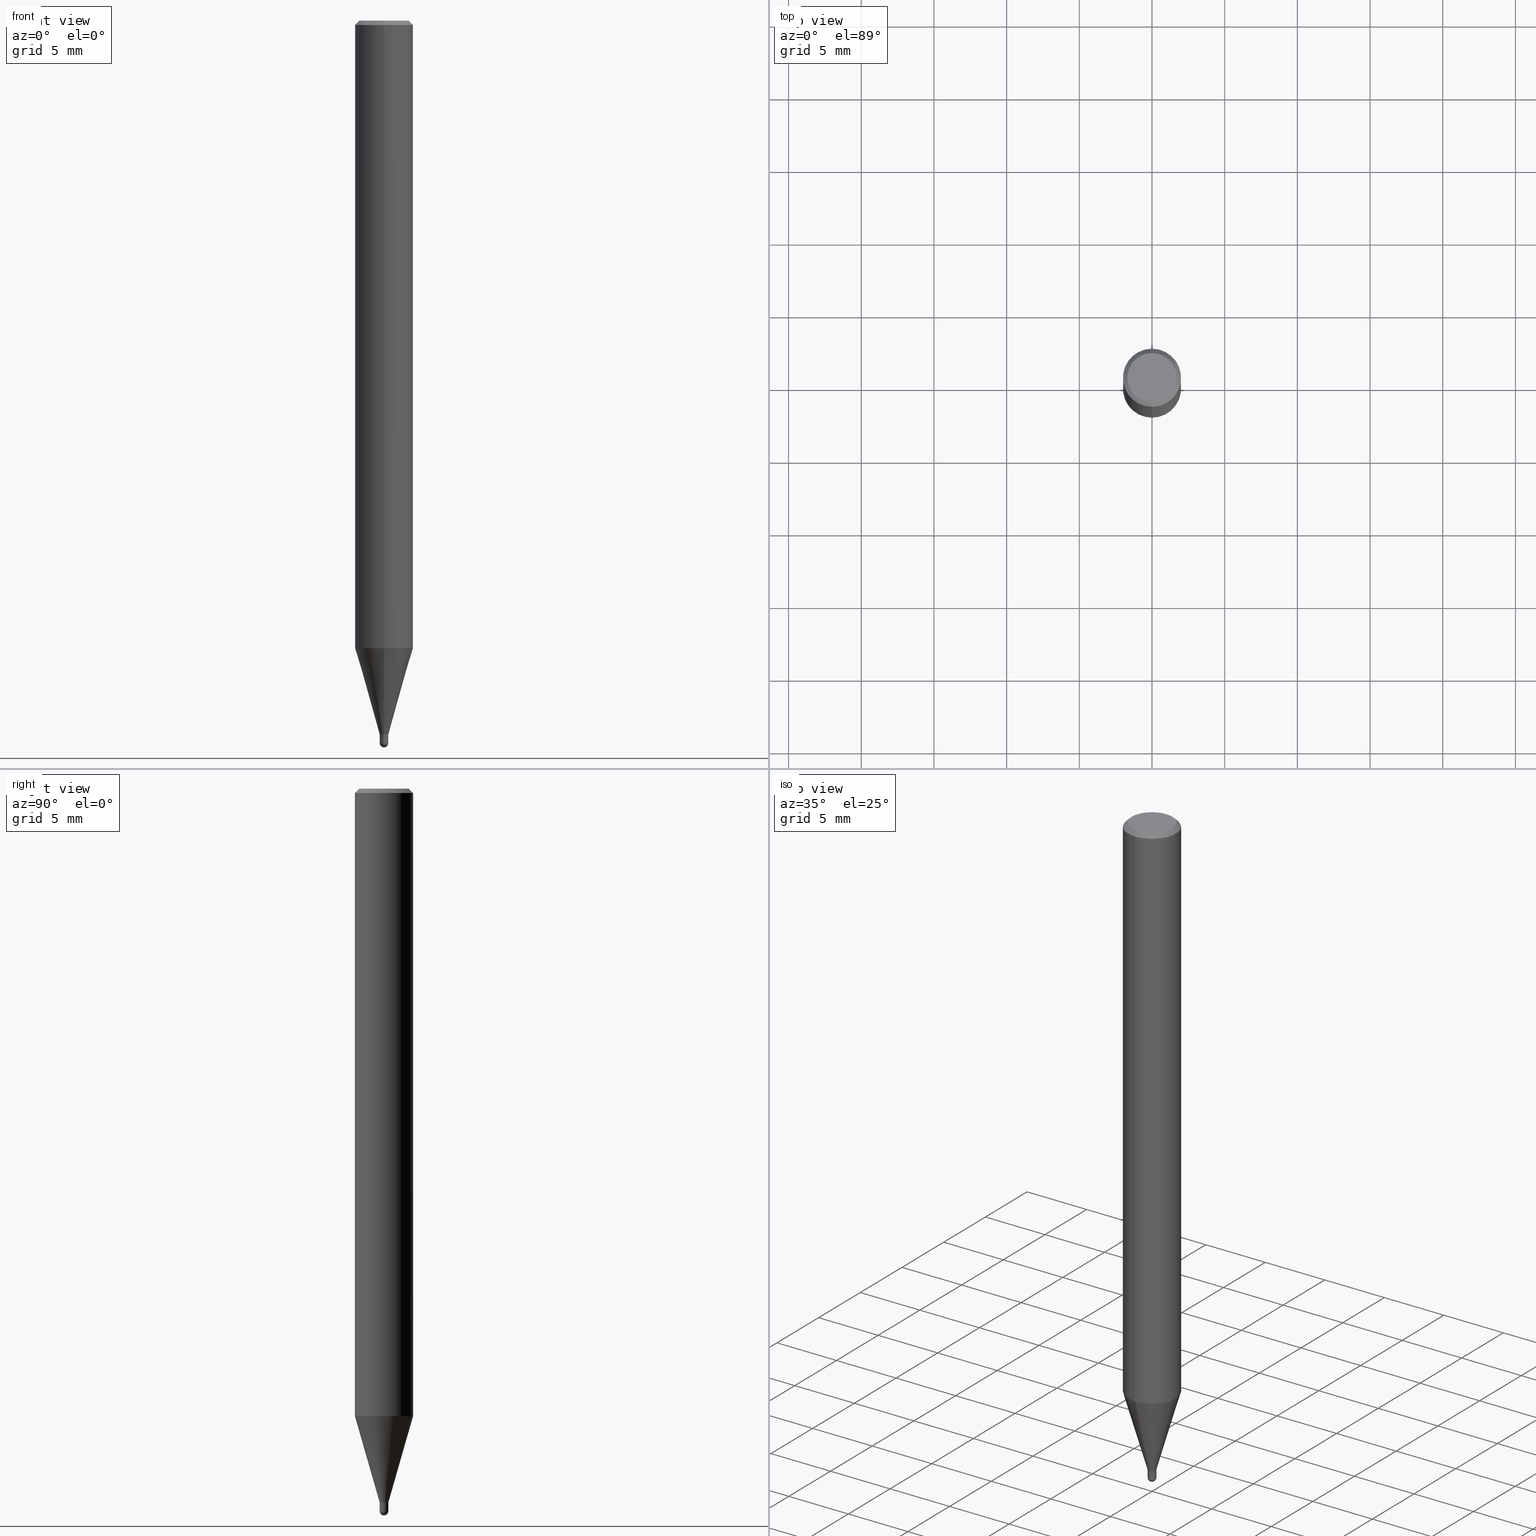
[diagram: canonical four-view strip — front | top / right | iso, engineering-drawing reading convention]
A machine part, canonical four-view strip (front | top / right | iso — engineering-drawing reading convention). The complete STEP part file that produces these views, byte-faithful:
ISO-10303-21;
HEADER;
FILE_DESCRIPTION(('no description'),'unknown implementation level');
FILE_NAME('CFB3006-0090-Huellk.stp','  ',('CIMSOURCE GmbH'),('CADClick - KiM GmbH - www.kimweb.de'),'unknown preprocess','ACIS','unknown authorization');
FILE_SCHEMA(('automotive_design'));
ENDSEC;
DATA;
#1=MECHANICAL_DESIGN_GEOMETRIC_PRESENTATION_REPRESENTATION(' ',(#14,#15,#16,#17,#18,#19,#20,#21,#22,#23,#24,#25,#26,#27,#28,#29,#30,#31,#32,#33,#34,#35,#36,#37,#38,#39,#40,#41,#42,#43,#44,#45,#46,#47,#48,#49,#50,#51,#52,#53,#54,#55,#56,#57,#58,#59,#60,#61,#62,#63,#64,#65,#66),#10);
#2=PRODUCT_DEFINITION_CONTEXT('',#67,'design');
#3=APPLICATION_PROTOCOL_DEFINITION('INTERNATIONAL STANDARD','automotive_design',1994,#67);
#4=PRODUCT_CATEGORY_RELATIONSHIP('NONE','NONE',#68,#69);
#5=SHAPE_DEFINITION_REPRESENTATION(#70,#71);
#6=PRODUCT_DEFINITION_CONTEXT('',#72,'design');
#7=APPLICATION_PROTOCOL_DEFINITION('INTERNATIONAL STANDARD','automotive_design',1994,#72);
#8=PRODUCT_CATEGORY_RELATIONSHIP('NONE','NONE',#73,#74);
#9=SHAPE_DEFINITION_REPRESENTATION(#75,#76);
#10= (GEOMETRIC_REPRESENTATION_CONTEXT(3)GLOBAL_UNCERTAINTY_ASSIGNED_CONTEXT((#79))GLOBAL_UNIT_ASSIGNED_CONTEXT((#81,#82,#83))REPRESENTATION_CONTEXT('NONE','WORKSPACE'));
#14=STYLED_ITEM('',(#85),#86);
#15=STYLED_ITEM('',(#87),#88);
#16=STYLED_ITEM('',(#89),#90);
#17=STYLED_ITEM('',(#91),#92);
#18=STYLED_ITEM('',(#93),#94);
#19=STYLED_ITEM('',(#95),#96);
#20=STYLED_ITEM('',(#97),#98);
#21=STYLED_ITEM('',(#99),#100);
#22=STYLED_ITEM('',(#101),#102);
#23=STYLED_ITEM('',(#103),#104);
#24=STYLED_ITEM('',(#105),#106);
#25=STYLED_ITEM('',(#107),#108);
#26=STYLED_ITEM('',(#109),#110);
#27=STYLED_ITEM('',(#111),#112);
#28=STYLED_ITEM('',(#113),#114);
#29=STYLED_ITEM('',(#115),#116);
#30=STYLED_ITEM('',(#117),#118);
#31=STYLED_ITEM('',(#119),#120);
#32=STYLED_ITEM('',(#121),#122);
#33=STYLED_ITEM('',(#123),#124);
#34=STYLED_ITEM('',(#125),#126);
#35=STYLED_ITEM('',(#127),#128);
#36=STYLED_ITEM('',(#129),#130);
#37=STYLED_ITEM('',(#131),#132);
#38=STYLED_ITEM('',(#133),#134);
#39=STYLED_ITEM('',(#135),#136);
#40=STYLED_ITEM('',(#137),#138);
#41=STYLED_ITEM('',(#139),#140);
#42=STYLED_ITEM('',(#141),#142);
#43=STYLED_ITEM('',(#143),#144);
#44=STYLED_ITEM('',(#145),#146);
#45=STYLED_ITEM('',(#147),#148);
#46=STYLED_ITEM('',(#149),#150);
#47=STYLED_ITEM('',(#151),#152);
#48=STYLED_ITEM('',(#153),#154);
#49=STYLED_ITEM('',(#155),#156);
#50=STYLED_ITEM('',(#157),#158);
#51=STYLED_ITEM('',(#159),#160);
#52=STYLED_ITEM('',(#161),#162);
#53=STYLED_ITEM('',(#163),#164);
#54=STYLED_ITEM('',(#165),#166);
#55=STYLED_ITEM('',(#167),#168);
#56=STYLED_ITEM('',(#169),#170);
#57=STYLED_ITEM('',(#171),#172);
#58=STYLED_ITEM('',(#173),#174);
#59=STYLED_ITEM('',(#175),#176);
#60=STYLED_ITEM('',(#177),#178);
#61=STYLED_ITEM('',(#179),#180);
#62=STYLED_ITEM('',(#181),#182);
#63=STYLED_ITEM('',(#183),#184);
#64=STYLED_ITEM('',(#185),#186);
#65=STYLED_ITEM('',(#187),#188);
#66=STYLED_ITEM('',(#189),#190);
#67=APPLICATION_CONTEXT(' ');
#68=PRODUCT_CATEGORY('part','NONE');
#69=PRODUCT_RELATED_PRODUCT_CATEGORY('detail',' ',(#191));
#70=PRODUCT_DEFINITION_SHAPE('NONE','NONE',#192);
#71=ADVANCED_BREP_SHAPE_REPRESENTATION('1',(#102,#193),#10);
#72=APPLICATION_CONTEXT(' ');
#73=PRODUCT_CATEGORY('part','NONE');
#74=PRODUCT_RELATED_PRODUCT_CATEGORY('detail',' ',(#194));
#75=PRODUCT_DEFINITION_SHAPE('NONE','NONE',#195);
#76=ADVANCED_BREP_SHAPE_REPRESENTATION('2',(#174,#196),#10);
#79=UNCERTAINTY_MEASURE_WITH_UNIT(LENGTH_MEASURE(1.0E-006),#81,'','');
#81= (CONVERSION_BASED_UNIT('MILLIMETRE',#199)LENGTH_UNIT()NAMED_UNIT(#202));
#82= (NAMED_UNIT(#204)PLANE_ANGLE_UNIT()SI_UNIT($,.RADIAN.));
#83= (NAMED_UNIT(#204)SOLID_ANGLE_UNIT()SI_UNIT($,.STERADIAN.));
#85=PRESENTATION_STYLE_ASSIGNMENT((#210));
#86=ADVANCED_FACE('',(#211,#212),#213,.T.);
#87=PRESENTATION_STYLE_ASSIGNMENT((#214));
#88=ADVANCED_FACE('',(#215),#216,.T.);
#89=PRESENTATION_STYLE_ASSIGNMENT((#217));
#90=EDGE_CURVE('',#124,#100,#218,.T.);
#91=PRESENTATION_STYLE_ASSIGNMENT((#219));
#92=EDGE_CURVE('',#130,#100,#220,.T.);
#93=PRESENTATION_STYLE_ASSIGNMENT((#221));
#94=ADVANCED_FACE('',(#222),#223,.T.);
#95=PRESENTATION_STYLE_ASSIGNMENT((#224));
#96=VERTEX_POINT('',#225);
#97=PRESENTATION_STYLE_ASSIGNMENT((#226));
#98=VERTEX_POINT('',#227);
#99=PRESENTATION_STYLE_ASSIGNMENT((#228));
#100=VERTEX_POINT('',#229);
#101=PRESENTATION_STYLE_ASSIGNMENT((#230));
#102=MANIFOLD_SOLID_BREP('1',#231);
#103=PRESENTATION_STYLE_ASSIGNMENT((#232));
#104=VERTEX_POINT('',#233);
#105=PRESENTATION_STYLE_ASSIGNMENT((#234));
#106=VERTEX_POINT('',#235);
#107=PRESENTATION_STYLE_ASSIGNMENT((#236));
#108=ADVANCED_FACE('',(#237),#238,.T.);
#109=PRESENTATION_STYLE_ASSIGNMENT((#239));
#110=EDGE_CURVE('',#96,#176,#240,.T.);
#111=PRESENTATION_STYLE_ASSIGNMENT((#241));
#112=EDGE_CURVE('',#124,#126,#242,.T.);
#113=PRESENTATION_STYLE_ASSIGNMENT((#243));
#114=EDGE_CURVE('',#130,#126,#244,.T.);
#115=PRESENTATION_STYLE_ASSIGNMENT((#245));
#116=EDGE_CURVE('',#146,#124,#246,.T.);
#117=PRESENTATION_STYLE_ASSIGNMENT((#247));
#118=VERTEX_POINT('',#248);
#119=PRESENTATION_STYLE_ASSIGNMENT((#249));
#120=VERTEX_POINT('',#250);
#121=PRESENTATION_STYLE_ASSIGNMENT((#251));
#122=EDGE_CURVE('',#106,#118,#252,.T.);
#123=PRESENTATION_STYLE_ASSIGNMENT((#253));
#124=VERTEX_POINT('',#254);
#125=PRESENTATION_STYLE_ASSIGNMENT((#255));
#126=VERTEX_POINT('',#256);
#127=PRESENTATION_STYLE_ASSIGNMENT((#257));
#128=EDGE_CURVE('',#100,#124,#258,.T.);
#129=PRESENTATION_STYLE_ASSIGNMENT((#259));
#130=VERTEX_POINT('',#260);
#131=PRESENTATION_STYLE_ASSIGNMENT((#261));
#132=EDGE_CURVE('',#118,#98,#262,.T.);
#133=PRESENTATION_STYLE_ASSIGNMENT((#263));
#134=ADVANCED_FACE('',(#264),#265,.T.);
#135=PRESENTATION_STYLE_ASSIGNMENT((#266));
#136=EDGE_CURVE('',#186,#188,#267,.T.);
#137=PRESENTATION_STYLE_ASSIGNMENT((#268));
#138=EDGE_CURVE('',#100,#120,#269,.T.);
#139=PRESENTATION_STYLE_ASSIGNMENT((#270));
#140=ADVANCED_FACE('',(#271),#272,.T.);
#141=PRESENTATION_STYLE_ASSIGNMENT((#273));
#142=ADVANCED_FACE('',(#274),#275,.T.);
#143=PRESENTATION_STYLE_ASSIGNMENT((#276));
#144=EDGE_CURVE('',#146,#120,#277,.T.);
#145=PRESENTATION_STYLE_ASSIGNMENT((#278));
#146=VERTEX_POINT('',#279);
#147=PRESENTATION_STYLE_ASSIGNMENT((#280));
#148=EDGE_CURVE('',#104,#106,#281,.T.);
#149=PRESENTATION_STYLE_ASSIGNMENT((#282));
#150=EDGE_CURVE('',#98,#118,#283,.T.);
#151=PRESENTATION_STYLE_ASSIGNMENT((#284));
#152=ADVANCED_FACE('',(#285),#286,.T.);
#153=PRESENTATION_STYLE_ASSIGNMENT((#287));
#154=EDGE_CURVE('',#176,#96,#288,.T.);
#155=PRESENTATION_STYLE_ASSIGNMENT((#289));
#156=ADVANCED_FACE('',(#290),#291,.T.);
#157=PRESENTATION_STYLE_ASSIGNMENT((#292));
#158=EDGE_CURVE('',#106,#104,#293,.T.);
#159=PRESENTATION_STYLE_ASSIGNMENT((#294));
#160=EDGE_CURVE('',#106,#104,#295,.T.);
#161=PRESENTATION_STYLE_ASSIGNMENT((#296));
#162=ADVANCED_FACE('',(#297),#298,.T.);
#163=PRESENTATION_STYLE_ASSIGNMENT((#299));
#164=ADVANCED_FACE('',(#300),#301,.T.);
#165=PRESENTATION_STYLE_ASSIGNMENT((#302));
#166=ADVANCED_FACE('',(#303),#304,.T.);
#167=PRESENTATION_STYLE_ASSIGNMENT((#305));
#168=EDGE_CURVE('',#176,#188,#306,.T.);
#169=PRESENTATION_STYLE_ASSIGNMENT((#307));
#170=EDGE_CURVE('',#98,#104,#308,.T.);
#171=PRESENTATION_STYLE_ASSIGNMENT((#309));
#172=ADVANCED_FACE('',(#310),#311,.T.);
#173=PRESENTATION_STYLE_ASSIGNMENT((#312));
#174=MANIFOLD_SOLID_BREP('2',#313);
#175=PRESENTATION_STYLE_ASSIGNMENT((#314));
#176=VERTEX_POINT('',#315);
#177=PRESENTATION_STYLE_ASSIGNMENT((#316));
#178=EDGE_CURVE('',#188,#186,#317,.T.);
#179=PRESENTATION_STYLE_ASSIGNMENT((#318));
#180=EDGE_CURVE('',#120,#146,#319,.T.);
#181=PRESENTATION_STYLE_ASSIGNMENT((#320));
#182=EDGE_CURVE('',#126,#130,#321,.T.);
#183=PRESENTATION_STYLE_ASSIGNMENT((#322));
#184=EDGE_CURVE('',#186,#96,#323,.T.);
#185=PRESENTATION_STYLE_ASSIGNMENT((#324));
#186=VERTEX_POINT('',#325);
#187=PRESENTATION_STYLE_ASSIGNMENT((#326));
#188=VERTEX_POINT('',#327);
#189=PRESENTATION_STYLE_ASSIGNMENT((#328));
#190=ADVANCED_FACE('',(#329),#330,.T.);
#191=PRODUCT('1','1','PART-1-DESC',(#331));
#192=PRODUCT_DEFINITION('NONE','NONE',#332,#2);
#193=AXIS2_PLACEMENT_3D('',#333,#334,#335);
#194=PRODUCT('2','2','PART-2-DESC',(#336));
#195=PRODUCT_DEFINITION('NONE','NONE',#337,#6);
#196=AXIS2_PLACEMENT_3D('',#338,#339,#340);
#199=LENGTH_MEASURE_WITH_UNIT(LENGTH_MEASURE(1.0),#341);
#202=DIMENSIONAL_EXPONENTS(1.0,0.0,0.0,0.0,0.0,0.0,0.0);
#204=DIMENSIONAL_EXPONENTS(0.0,0.0,0.0,0.0,0.0,0.0,0.0);
#210=SURFACE_STYLE_USAGE(.BOTH.,#342);
#211=FACE_OUTER_BOUND('',#343,.T.);
#212=FACE_BOUND('',#344,.T.);
#213=PLANE('',#345);
#214=SURFACE_STYLE_USAGE(.BOTH.,#346);
#215=FACE_OUTER_BOUND('',#347,.T.);
#216=CONICAL_SURFACE('',#348,0.29995,0.000166666665123438);
#217=CURVE_STYLE('',#349,POSITIVE_LENGTH_MEASURE(1.0E-006),#350);
#218=CIRCLE('',#351,2.0);
#219=CURVE_STYLE('',#352,POSITIVE_LENGTH_MEASURE(1.0E-006),#353);
#220=LINE('',#354,#355);
#221=SURFACE_STYLE_USAGE(.BOTH.,#356);
#222=FACE_OUTER_BOUND('',#357,.T.);
#223=CONICAL_SURFACE('',#358,1.85,0.785398163397453);
#224=POINT_STYLE(' ',#359,POSITIVE_LENGTH_MEASURE(1.0E-006),#360);
#225=CARTESIAN_POINT('',(0.0,0.29995,-49.1));
#226=POINT_STYLE(' ',#361,POSITIVE_LENGTH_MEASURE(1.0E-006),#362);
#227=CARTESIAN_POINT('',(0.0,0.2999,-49.1));
#228=POINT_STYLE(' ',#363,POSITIVE_LENGTH_MEASURE(1.0E-006),#364);
#229=CARTESIAN_POINT('',(2.44921270764475E-016,-2.0,-0.299999999999997));
#230=SURFACE_STYLE_USAGE(.BOTH.,#365);
#231=CLOSED_SHELL('',(#162,#164,#142,#86,#166,#94,#190,#152,#108));
#232=POINT_STYLE(' ',#366,POSITIVE_LENGTH_MEASURE(1.0E-006),#367);
#233=CARTESIAN_POINT('',(0.0,0.3,-49.7));
#234=POINT_STYLE(' ',#368,POSITIVE_LENGTH_MEASURE(1.0E-006),#369);
#235=CARTESIAN_POINT('',(3.67381906146713E-017,-0.3,-49.7));
#236=SURFACE_STYLE_USAGE(.BOTH.,#370);
#237=FACE_OUTER_BOUND('',#371,.T.);
#238=PLANE('',#372);
#239=CURVE_STYLE('',#373,POSITIVE_LENGTH_MEASURE(1.0E-006),#374);
#240=CIRCLE('',#375,0.29995);
#241=CURVE_STYLE('',#376,POSITIVE_LENGTH_MEASURE(1.0E-006),#377);
#242=LINE('',#378,#379);
#243=CURVE_STYLE('',#380,POSITIVE_LENGTH_MEASURE(1.0E-006),#381);
#244=CIRCLE('',#382,2.0);
#245=CURVE_STYLE('',#383,POSITIVE_LENGTH_MEASURE(1.0E-006),#384);
#246=LINE('',#385,#386);
#247=POINT_STYLE(' ',#387,POSITIVE_LENGTH_MEASURE(1.0E-006),#388);
#248=CARTESIAN_POINT('',(3.67259445511331E-017,-0.2999,-49.1));
#249=POINT_STYLE(' ',#389,POSITIVE_LENGTH_MEASURE(1.0E-006),#390);
#250=CARTESIAN_POINT('',(2.08183080149804E-016,-1.7,0.0));
#251=CURVE_STYLE('',#391,POSITIVE_LENGTH_MEASURE(1.0E-006),#392);
#252=LINE('',#393,#394);
#253=POINT_STYLE(' ',#395,POSITIVE_LENGTH_MEASURE(1.0E-006),#396);
#254=CARTESIAN_POINT('',(0.0,2.0,-0.299999999999997));
#255=POINT_STYLE(' ',#397,POSITIVE_LENGTH_MEASURE(1.0E-006),#398);
#256=CARTESIAN_POINT('',(0.0,2.0,-43.171));
#257=CURVE_STYLE('',#399,POSITIVE_LENGTH_MEASURE(1.0E-006),#400);
#258=CIRCLE('',#401,2.0);
#259=POINT_STYLE(' ',#402,POSITIVE_LENGTH_MEASURE(1.0E-006),#403);
#260=CARTESIAN_POINT('',(2.44921270764475E-016,-2.0,-43.171));
#261=CURVE_STYLE('',#404,POSITIVE_LENGTH_MEASURE(1.0E-006),#405);
#262=CIRCLE('',#406,0.2999);
#263=SURFACE_STYLE_USAGE(.BOTH.,#407);
#264=FACE_OUTER_BOUND('',#408,.T.);
#265=SPHERICAL_SURFACE('',#409,0.3);
#266=CURVE_STYLE('',#410,POSITIVE_LENGTH_MEASURE(1.0E-006),#411);
#267=CIRCLE('',#412,1.99995);
#268=CURVE_STYLE('',#413,POSITIVE_LENGTH_MEASURE(1.0E-006),#414);
#269=LINE('',#415,#416);
#270=SURFACE_STYLE_USAGE(.BOTH.,#417);
#271=FACE_OUTER_BOUND('',#418,.T.);
#272=PLANE('',#419);
#273=SURFACE_STYLE_USAGE(.BOTH.,#420);
#274=FACE_OUTER_BOUND('',#421,.T.);
#275=CONICAL_SURFACE('',#422,1.85,0.785398163397453);
#276=CURVE_STYLE('',#423,POSITIVE_LENGTH_MEASURE(1.0E-006),#424);
#277=CIRCLE('',#425,1.7);
#278=POINT_STYLE(' ',#426,POSITIVE_LENGTH_MEASURE(1.0E-006),#427);
#279=CARTESIAN_POINT('',(0.0,1.7,0.0));
#280=CURVE_STYLE('',#428,POSITIVE_LENGTH_MEASURE(1.0E-006),#429);
#281=CIRCLE('',#430,0.3);
#282=CURVE_STYLE('',#431,POSITIVE_LENGTH_MEASURE(1.0E-006),#432);
#283=CIRCLE('',#433,0.2999);
#284=SURFACE_STYLE_USAGE(.BOTH.,#434);
#285=FACE_OUTER_BOUND('',#435,.T.);
#286=CONICAL_SURFACE('',#436,1.14995,0.279235008263551);
#287=CURVE_STYLE('',#437,POSITIVE_LENGTH_MEASURE(1.0E-006),#438);
#288=CIRCLE('',#439,0.29995);
#289=SURFACE_STYLE_USAGE(.BOTH.,#440);
#290=FACE_OUTER_BOUND('',#441,.T.);
#291=CONICAL_SURFACE('',#442,0.29995,0.000166666665123438);
#292=CURVE_STYLE('',#443,POSITIVE_LENGTH_MEASURE(1.0E-006),#444);
#293=CIRCLE('',#445,0.3);
#294=CURVE_STYLE('',#446,POSITIVE_LENGTH_MEASURE(1.0E-006),#447);
#295=CIRCLE('',#448,0.3);
#296=SURFACE_STYLE_USAGE(.BOTH.,#449);
#297=FACE_OUTER_BOUND('',#450,.T.);
#298=CONICAL_SURFACE('',#451,1.14995,0.279235008263551);
#299=SURFACE_STYLE_USAGE(.BOTH.,#452);
#300=FACE_OUTER_BOUND('',#453,.T.);
#301=CYLINDRICAL_SURFACE('',#454,2.0);
#302=SURFACE_STYLE_USAGE(.BOTH.,#455);
#303=FACE_OUTER_BOUND('',#456,.T.);
#304=PLANE('',#457);
#305=CURVE_STYLE('',#458,POSITIVE_LENGTH_MEASURE(1.0E-006),#459);
#306=LINE('',#460,#461);
#307=CURVE_STYLE('',#462,POSITIVE_LENGTH_MEASURE(1.0E-006),#463);
#308=LINE('',#464,#465);
#309=SURFACE_STYLE_USAGE(.BOTH.,#466);
#310=FACE_OUTER_BOUND('',#467,.T.);
#311=SPHERICAL_SURFACE('',#468,0.3);
#312=SURFACE_STYLE_USAGE(.BOTH.,#469);
#313=CLOSED_SHELL('',(#172,#88,#140,#156,#134));
#314=POINT_STYLE(' ',#470,POSITIVE_LENGTH_MEASURE(1.0E-006),#471);
#315=CARTESIAN_POINT('',(3.67320675829022E-017,-0.29995,-49.1));
#316=CURVE_STYLE('',#472,POSITIVE_LENGTH_MEASURE(1.0E-006),#473);
#317=CIRCLE('',#474,1.99995);
#318=CURVE_STYLE('',#475,POSITIVE_LENGTH_MEASURE(1.0E-006),#476);
#319=CIRCLE('',#477,1.7);
#320=CURVE_STYLE('',#478,POSITIVE_LENGTH_MEASURE(1.0E-006),#479);
#321=CIRCLE('',#480,2.0);
#322=CURVE_STYLE('',#481,POSITIVE_LENGTH_MEASURE(1.0E-006),#482);
#323=LINE('',#483,#484);
#324=POINT_STYLE(' ',#485,POSITIVE_LENGTH_MEASURE(1.0E-006),#486);
#325=CARTESIAN_POINT('',(0.0,1.99995,-43.171));
#326=POINT_STYLE(' ',#487,POSITIVE_LENGTH_MEASURE(1.0E-006),#488);
#327=CARTESIAN_POINT('',(2.44915147732706E-016,-1.99995,-43.171));
#328=SURFACE_STYLE_USAGE(.BOTH.,#489);
#329=FACE_OUTER_BOUND('',#490,.T.);
#330=CYLINDRICAL_SURFACE('',#491,2.0);
#331=PRODUCT_CONTEXT('',#67,'mechanical');
#332=PRODUCT_DEFINITION_FORMATION_WITH_SPECIFIED_SOURCE(' ','NONE',#191,.NOT_KNOWN.);
#333=CARTESIAN_POINT('',(0.0,0.0,0.0));
#334=DIRECTION('',(0.0,0.0,1.0));
#335=DIRECTION('',(1.0,0.0,0.0));
#336=PRODUCT_CONTEXT('',#72,'mechanical');
#337=PRODUCT_DEFINITION_FORMATION_WITH_SPECIFIED_SOURCE(' ','NONE',#194,.NOT_KNOWN.);
#338=CARTESIAN_POINT('',(0.0,0.0,0.0));
#339=DIRECTION('',(0.0,0.0,1.0));
#340=DIRECTION('',(1.0,0.0,0.0));
#341= (NAMED_UNIT(#202)LENGTH_UNIT()SI_UNIT(.MILLI.,.METRE.));
#342=SURFACE_SIDE_STYLE('',(#493));
#343=EDGE_LOOP('',(#494,#495));
#344=EDGE_LOOP('',(#496,#497));
#345=AXIS2_PLACEMENT_3D('',#498,#499,#500);
#346=SURFACE_SIDE_STYLE('',(#501));
#347=EDGE_LOOP('',(#502,#503,#504,#505));
#348=AXIS2_PLACEMENT_3D('',#506,#507,#508);
#349=DRAUGHTING_PRE_DEFINED_CURVE_FONT('continuous');
#350=COLOUR_RGB('',0.498039215803146,0.498039215803146,0.498039215803146);
#351=AXIS2_PLACEMENT_3D('',#509,#510,#511);
#352=DRAUGHTING_PRE_DEFINED_CURVE_FONT('continuous');
#353=COLOUR_RGB('',0.498039215803146,0.498039215803146,0.498039215803146);
#354=CARTESIAN_POINT('',(2.44921270764475E-016,-2.0,-21.7355));
#355=VECTOR('',#512,1.0);
#356=SURFACE_SIDE_STYLE('',(#513));
#357=EDGE_LOOP('',(#514,#515,#516,#517));
#358=AXIS2_PLACEMENT_3D('',#518,#519,#520);
#359=PRE_DEFINED_MARKER('');
#360=COLOUR_RGB('',0.498039215803146,0.498039215803146,0.498039215803146);
#361=PRE_DEFINED_MARKER('');
#362=COLOUR_RGB('',0.800000011920929,0.800000011920929,0.800000011920929);
#363=PRE_DEFINED_MARKER('');
#364=COLOUR_RGB('',0.498039215803146,0.498039215803146,0.498039215803146);
#365=SURFACE_SIDE_STYLE('',(#521));
#366=PRE_DEFINED_MARKER('');
#367=COLOUR_RGB('',0.800000011920929,0.800000011920929,0.800000011920929);
#368=PRE_DEFINED_MARKER('');
#369=COLOUR_RGB('',0.800000011920929,0.800000011920929,0.800000011920929);
#370=SURFACE_SIDE_STYLE('',(#522));
#371=EDGE_LOOP('',(#523,#524));
#372=AXIS2_PLACEMENT_3D('',#525,#526,#527);
#373=DRAUGHTING_PRE_DEFINED_CURVE_FONT('continuous');
#374=COLOUR_RGB('',0.498039215803146,0.498039215803146,0.498039215803146);
#375=AXIS2_PLACEMENT_3D('',#528,#529,#530);
#376=DRAUGHTING_PRE_DEFINED_CURVE_FONT('continuous');
#377=COLOUR_RGB('',0.498039215803146,0.498039215803146,0.498039215803146);
#378=CARTESIAN_POINT('',(-2.44921270764475E-016,2.0,-21.7355));
#379=VECTOR('',#531,1.0);
#380=DRAUGHTING_PRE_DEFINED_CURVE_FONT('continuous');
#381=COLOUR_RGB('',0.498039215803146,0.498039215803146,0.498039215803146);
#382=AXIS2_PLACEMENT_3D('',#532,#533,#534);
#383=DRAUGHTING_PRE_DEFINED_CURVE_FONT('continuous');
#384=COLOUR_RGB('',0.498039215803146,0.498039215803146,0.498039215803146);
#385=CARTESIAN_POINT('',(-2.2655217545714E-016,1.85,-0.149999999999999));
#386=VECTOR('',#535,1.0);
#387=PRE_DEFINED_MARKER('');
#388=COLOUR_RGB('',0.800000011920929,0.800000011920929,0.800000011920929);
#389=PRE_DEFINED_MARKER('');
#390=COLOUR_RGB('',0.498039215803146,0.498039215803146,0.498039215803146);
#391=DRAUGHTING_PRE_DEFINED_CURVE_FONT('continuous');
#392=COLOUR_RGB('',0.800000011920929,0.800000011920929,0.800000011920929);
#393=CARTESIAN_POINT('',(3.67320675829022E-017,-0.29995,-49.4));
#394=VECTOR('',#536,1.0);
#395=PRE_DEFINED_MARKER('');
#396=COLOUR_RGB('',0.498039215803146,0.498039215803146,0.498039215803146);
#397=PRE_DEFINED_MARKER('');
#398=COLOUR_RGB('',0.498039215803146,0.498039215803146,0.498039215803146);
#399=DRAUGHTING_PRE_DEFINED_CURVE_FONT('continuous');
#400=COLOUR_RGB('',0.498039215803146,0.498039215803146,0.498039215803146);
#401=AXIS2_PLACEMENT_3D('',#537,#538,#539);
#402=PRE_DEFINED_MARKER('');
#403=COLOUR_RGB('',0.498039215803146,0.498039215803146,0.498039215803146);
#404=DRAUGHTING_PRE_DEFINED_CURVE_FONT('continuous');
#405=COLOUR_RGB('',0.800000011920929,0.800000011920929,0.800000011920929);
#406=AXIS2_PLACEMENT_3D('',#540,#541,#542);
#407=SURFACE_SIDE_STYLE('',(#543));
#408=EDGE_LOOP('',(#544,#545));
#409=AXIS2_PLACEMENT_3D('',#546,#547,#548);
#410=DRAUGHTING_PRE_DEFINED_CURVE_FONT('continuous');
#411=COLOUR_RGB('',0.498039215803146,0.498039215803146,0.498039215803146);
#412=AXIS2_PLACEMENT_3D('',#549,#550,#551);
#413=DRAUGHTING_PRE_DEFINED_CURVE_FONT('continuous');
#414=COLOUR_RGB('',0.498039215803146,0.498039215803146,0.498039215803146);
#415=CARTESIAN_POINT('',(2.2655217545714E-016,-1.85,-0.149999999999999));
#416=VECTOR('',#552,1.0);
#417=SURFACE_SIDE_STYLE('',(#553));
#418=EDGE_LOOP('',(#554,#555));
#419=AXIS2_PLACEMENT_3D('',#556,#557,#558);
#420=SURFACE_SIDE_STYLE('',(#559));
#421=EDGE_LOOP('',(#560,#561,#562,#563));
#422=AXIS2_PLACEMENT_3D('',#564,#565,#566);
#423=DRAUGHTING_PRE_DEFINED_CURVE_FONT('continuous');
#424=COLOUR_RGB('',0.498039215803146,0.498039215803146,0.498039215803146);
#425=AXIS2_PLACEMENT_3D('',#567,#568,#569);
#426=PRE_DEFINED_MARKER('');
#427=COLOUR_RGB('',0.498039215803146,0.498039215803146,0.498039215803146);
#428=DRAUGHTING_PRE_DEFINED_CURVE_FONT('continuous');
#429=COLOUR_RGB('',0.800000011920929,0.800000011920929,0.800000011920929);
#430=AXIS2_PLACEMENT_3D('',#570,#571,#572);
#431=DRAUGHTING_PRE_DEFINED_CURVE_FONT('continuous');
#432=COLOUR_RGB('',0.800000011920929,0.800000011920929,0.800000011920929);
#433=AXIS2_PLACEMENT_3D('',#573,#574,#575);
#434=SURFACE_SIDE_STYLE('',(#576));
#435=EDGE_LOOP('',(#577,#578,#579,#580));
#436=AXIS2_PLACEMENT_3D('',#581,#582,#583);
#437=DRAUGHTING_PRE_DEFINED_CURVE_FONT('continuous');
#438=COLOUR_RGB('',0.498039215803146,0.498039215803146,0.498039215803146);
#439=AXIS2_PLACEMENT_3D('',#584,#585,#586);
#440=SURFACE_SIDE_STYLE('',(#587));
#441=EDGE_LOOP('',(#588,#589,#590,#591));
#442=AXIS2_PLACEMENT_3D('',#592,#593,#594);
#443=DRAUGHTING_PRE_DEFINED_CURVE_FONT('continuous');
#444=COLOUR_RGB('',0.800000011920929,0.800000011920929,0.800000011920929);
#445=AXIS2_PLACEMENT_3D('',#595,#596,#597);
#446=DRAUGHTING_PRE_DEFINED_CURVE_FONT('continuous');
#447=COLOUR_RGB('',0.800000011920929,0.800000011920929,0.800000011920929);
#448=AXIS2_PLACEMENT_3D('',#598,#599,#600);
#449=SURFACE_SIDE_STYLE('',(#601));
#450=EDGE_LOOP('',(#602,#603,#604,#605));
#451=AXIS2_PLACEMENT_3D('',#606,#607,#608);
#452=SURFACE_SIDE_STYLE('',(#609));
#453=EDGE_LOOP('',(#610,#611,#612,#613));
#454=AXIS2_PLACEMENT_3D('',#614,#615,#616);
#455=SURFACE_SIDE_STYLE('',(#617));
#456=EDGE_LOOP('',(#618,#619));
#457=AXIS2_PLACEMENT_3D('',#620,#621,#622);
#458=DRAUGHTING_PRE_DEFINED_CURVE_FONT('continuous');
#459=COLOUR_RGB('',0.498039215803146,0.498039215803146,0.498039215803146);
#460=CARTESIAN_POINT('',(1.40823607657804E-016,-1.14995,-46.1355));
#461=VECTOR('',#623,1.0);
#462=DRAUGHTING_PRE_DEFINED_CURVE_FONT('continuous');
#463=COLOUR_RGB('',0.800000011920929,0.800000011920929,0.800000011920929);
#464=CARTESIAN_POINT('',(-3.67320675829022E-017,0.29995,-49.4));
#465=VECTOR('',#624,1.0);
#466=SURFACE_SIDE_STYLE('',(#625));
#467=EDGE_LOOP('',(#626,#627));
#468=AXIS2_PLACEMENT_3D('',#628,#629,#630);
#469=SURFACE_SIDE_STYLE('',(#631));
#470=PRE_DEFINED_MARKER('');
#471=COLOUR_RGB('',0.498039215803146,0.498039215803146,0.498039215803146);
#472=DRAUGHTING_PRE_DEFINED_CURVE_FONT('continuous');
#473=COLOUR_RGB('',0.498039215803146,0.498039215803146,0.498039215803146);
#474=AXIS2_PLACEMENT_3D('',#632,#633,#634);
#475=DRAUGHTING_PRE_DEFINED_CURVE_FONT('continuous');
#476=COLOUR_RGB('',0.498039215803146,0.498039215803146,0.498039215803146);
#477=AXIS2_PLACEMENT_3D('',#635,#636,#637);
#478=DRAUGHTING_PRE_DEFINED_CURVE_FONT('continuous');
#479=COLOUR_RGB('',0.498039215803146,0.498039215803146,0.498039215803146);
#480=AXIS2_PLACEMENT_3D('',#638,#639,#640);
#481=DRAUGHTING_PRE_DEFINED_CURVE_FONT('continuous');
#482=COLOUR_RGB('',0.498039215803146,0.498039215803146,0.498039215803146);
#483=CARTESIAN_POINT('',(-1.40823607657804E-016,1.14995,-46.1355));
#484=VECTOR('',#641,1.0);
#485=PRE_DEFINED_MARKER('');
#486=COLOUR_RGB('',0.498039215803146,0.498039215803146,0.498039215803146);
#487=PRE_DEFINED_MARKER('');
#488=COLOUR_RGB('',0.498039215803146,0.498039215803146,0.498039215803146);
#489=SURFACE_SIDE_STYLE('',(#642));
#490=EDGE_LOOP('',(#643,#644,#645,#646));
#491=AXIS2_PLACEMENT_3D('',#647,#648,#649);
#493=SURFACE_STYLE_FILL_AREA(#650);
#494=ORIENTED_EDGE('',*,*,#182,.T.);
#495=ORIENTED_EDGE('',*,*,#114,.T.);
#496=ORIENTED_EDGE('',*,*,#136,.F.);
#497=ORIENTED_EDGE('',*,*,#178,.F.);
#498=CARTESIAN_POINT('',(0.0,1.0,-43.171));
#499=DIRECTION('',(0.0,0.0,-1.0));
#500=DIRECTION('',(0.0,1.0,0.0));
#501=SURFACE_STYLE_FILL_AREA(#651);
#502=ORIENTED_EDGE('',*,*,#170,.F.);
#503=ORIENTED_EDGE('',*,*,#150,.T.);
#504=ORIENTED_EDGE('',*,*,#122,.F.);
#505=ORIENTED_EDGE('',*,*,#148,.F.);
#506=CARTESIAN_POINT('',(0.0,0.0,-49.4));
#507=DIRECTION('',(0.0,-0.0,-1.0));
#508=DIRECTION('',(0.0,1.0,0.0));
#509=CARTESIAN_POINT('',(0.0,0.0,-0.299999999999997));
#510=DIRECTION('',(0.0,0.0,-1.0));
#511=DIRECTION('',(0.0,1.0,0.0));
#512=DIRECTION('',(-0.0,-0.0,1.0));
#513=SURFACE_STYLE_FILL_AREA(#652);
#514=ORIENTED_EDGE('',*,*,#116,.T.);
#515=ORIENTED_EDGE('',*,*,#128,.F.);
#516=ORIENTED_EDGE('',*,*,#138,.T.);
#517=ORIENTED_EDGE('',*,*,#180,.T.);
#518=CARTESIAN_POINT('',(0.0,0.0,-0.149999999999999));
#519=DIRECTION('',(0.0,-0.0,-1.0));
#520=DIRECTION('',(0.0,1.0,0.0));
#521=SURFACE_STYLE_FILL_AREA(#653);
#522=SURFACE_STYLE_FILL_AREA(#654);
#523=ORIENTED_EDGE('',*,*,#110,.T.);
#524=ORIENTED_EDGE('',*,*,#154,.T.);
#525=CARTESIAN_POINT('',(0.0,0.149975,-49.1));
#526=DIRECTION('',(0.0,0.0,-1.0));
#527=DIRECTION('',(0.0,1.0,0.0));
#528=CARTESIAN_POINT('',(0.0,0.0,-49.1));
#529=DIRECTION('',(0.0,0.0,-1.0));
#530=DIRECTION('',(0.0,1.0,0.0));
#531=DIRECTION('',(0.0,0.0,-1.0));
#532=CARTESIAN_POINT('',(0.0,0.0,-43.171));
#533=DIRECTION('',(0.0,0.0,-1.0));
#534=DIRECTION('',(0.0,1.0,0.0));
#535=DIRECTION('',(-8.6592745707194E-017,0.707106781186551,-0.707106781186544));
#536=DIRECTION('',(-2.04101056135637E-020,0.000166666664351834,0.999999986111111));
#537=CARTESIAN_POINT('',(0.0,0.0,-0.299999999999997));
#538=DIRECTION('',(0.0,0.0,-1.0));
#539=DIRECTION('',(0.0,1.0,0.0));
#540=CARTESIAN_POINT('',(0.0,0.0,-49.1));
#541=DIRECTION('',(0.0,0.0,-1.0));
#542=DIRECTION('',(0.0,1.0,0.0));
#543=SURFACE_STYLE_FILL_AREA(#655);
#544=ORIENTED_EDGE('',*,*,#158,.T.);
#545=ORIENTED_EDGE('',*,*,#148,.T.);
#546=CARTESIAN_POINT('',(0.0,0.0,-49.7));
#547=DIRECTION('',(0.0,1.0,0.0));
#548=DIRECTION('',(0.0,0.0,-1.0));
#549=CARTESIAN_POINT('',(0.0,0.0,-43.171));
#550=DIRECTION('',(0.0,0.0,-1.0));
#551=DIRECTION('',(0.0,1.0,0.0));
#552=DIRECTION('',(-8.6592745707194E-017,0.707106781186551,0.707106781186544));
#553=SURFACE_STYLE_FILL_AREA(#656);
#554=ORIENTED_EDGE('',*,*,#150,.F.);
#555=ORIENTED_EDGE('',*,*,#132,.F.);
#556=CARTESIAN_POINT('',(0.0,0.14995,-49.1));
#557=DIRECTION('',(-0.0,0.0,1.0));
#558=DIRECTION('',(0.0,-1.0,0.0));
#559=SURFACE_STYLE_FILL_AREA(#657);
#560=ORIENTED_EDGE('',*,*,#116,.F.);
#561=ORIENTED_EDGE('',*,*,#144,.T.);
#562=ORIENTED_EDGE('',*,*,#138,.F.);
#563=ORIENTED_EDGE('',*,*,#90,.F.);
#564=CARTESIAN_POINT('',(0.0,0.0,-0.149999999999999));
#565=DIRECTION('',(0.0,-0.0,-1.0));
#566=DIRECTION('',(0.0,1.0,0.0));
#567=CARTESIAN_POINT('',(0.0,0.0,0.0));
#568=DIRECTION('',(0.0,0.0,-1.0));
#569=DIRECTION('',(0.0,1.0,0.0));
#570=CARTESIAN_POINT('',(0.0,0.0,-49.7));
#571=DIRECTION('',(0.0,0.0,-1.0));
#572=DIRECTION('',(0.0,1.0,0.0));
#573=CARTESIAN_POINT('',(0.0,0.0,-49.1));
#574=DIRECTION('',(0.0,0.0,-1.0));
#575=DIRECTION('',(0.0,1.0,0.0));
#576=SURFACE_STYLE_FILL_AREA(#658);
#577=ORIENTED_EDGE('',*,*,#184,.T.);
#578=ORIENTED_EDGE('',*,*,#154,.F.);
#579=ORIENTED_EDGE('',*,*,#168,.T.);
#580=ORIENTED_EDGE('',*,*,#178,.T.);
#581=CARTESIAN_POINT('',(0.0,0.0,-46.1355));
#582=DIRECTION('',(-0.0,-0.0,1.0));
#583=DIRECTION('',(0.0,1.0,0.0));
#584=CARTESIAN_POINT('',(0.0,0.0,-49.1));
#585=DIRECTION('',(0.0,0.0,-1.0));
#586=DIRECTION('',(0.0,1.0,0.0));
#587=SURFACE_STYLE_FILL_AREA(#659);
#588=ORIENTED_EDGE('',*,*,#170,.T.);
#589=ORIENTED_EDGE('',*,*,#160,.F.);
#590=ORIENTED_EDGE('',*,*,#122,.T.);
#591=ORIENTED_EDGE('',*,*,#132,.T.);
#592=CARTESIAN_POINT('',(0.0,0.0,-49.4));
#593=DIRECTION('',(0.0,-0.0,-1.0));
#594=DIRECTION('',(0.0,1.0,0.0));
#595=CARTESIAN_POINT('',(0.0,0.0,-49.7));
#596=DIRECTION('',(1.0,0.0,1.22460635382239E-016));
#597=DIRECTION('',(-1.22460635382239E-016,0.0,1.0));
#598=CARTESIAN_POINT('',(0.0,0.0,-49.7));
#599=DIRECTION('',(0.0,0.0,-1.0));
#600=DIRECTION('',(0.0,1.0,0.0));
#601=SURFACE_STYLE_FILL_AREA(#660);
#602=ORIENTED_EDGE('',*,*,#184,.F.);
#603=ORIENTED_EDGE('',*,*,#136,.T.);
#604=ORIENTED_EDGE('',*,*,#168,.F.);
#605=ORIENTED_EDGE('',*,*,#110,.F.);
#606=CARTESIAN_POINT('',(0.0,0.0,-46.1355));
#607=DIRECTION('',(-0.0,-0.0,1.0));
#608=DIRECTION('',(0.0,1.0,0.0));
#609=SURFACE_STYLE_FILL_AREA(#661);
#610=ORIENTED_EDGE('',*,*,#112,.F.);
#611=ORIENTED_EDGE('',*,*,#90,.T.);
#612=ORIENTED_EDGE('',*,*,#92,.F.);
#613=ORIENTED_EDGE('',*,*,#182,.F.);
#614=CARTESIAN_POINT('',(0.0,0.0,-21.7355));
#615=DIRECTION('',(-0.0,-0.0,1.0));
#616=DIRECTION('',(0.0,1.0,0.0));
#617=SURFACE_STYLE_FILL_AREA(#662);
#618=ORIENTED_EDGE('',*,*,#144,.F.);
#619=ORIENTED_EDGE('',*,*,#180,.F.);
#620=CARTESIAN_POINT('',(0.0,0.85,0.0));
#621=DIRECTION('',(-0.0,0.0,1.0));
#622=DIRECTION('',(0.0,-1.0,0.0));
#623=DIRECTION('',(3.37526454267793E-017,-0.275620368303878,0.961266566866878));
#624=DIRECTION('',(-2.04101056135637E-020,0.000166666664351834,-0.999999986111111));
#625=SURFACE_STYLE_FILL_AREA(#663);
#626=ORIENTED_EDGE('',*,*,#158,.F.);
#627=ORIENTED_EDGE('',*,*,#160,.T.);
#628=CARTESIAN_POINT('',(0.0,0.0,-49.7));
#629=DIRECTION('',(0.0,1.0,0.0));
#630=DIRECTION('',(0.0,0.0,-1.0));
#631=SURFACE_STYLE_FILL_AREA(#664);
#632=CARTESIAN_POINT('',(0.0,0.0,-43.171));
#633=DIRECTION('',(0.0,0.0,-1.0));
#634=DIRECTION('',(0.0,1.0,0.0));
#635=CARTESIAN_POINT('',(0.0,0.0,0.0));
#636=DIRECTION('',(0.0,0.0,-1.0));
#637=DIRECTION('',(0.0,1.0,0.0));
#638=CARTESIAN_POINT('',(0.0,0.0,-43.171));
#639=DIRECTION('',(0.0,0.0,-1.0));
#640=DIRECTION('',(0.0,1.0,0.0));
#641=DIRECTION('',(3.37526454267793E-017,-0.275620368303878,-0.961266566866878));
#642=SURFACE_STYLE_FILL_AREA(#665);
#643=ORIENTED_EDGE('',*,*,#112,.T.);
#644=ORIENTED_EDGE('',*,*,#114,.F.);
#645=ORIENTED_EDGE('',*,*,#92,.T.);
#646=ORIENTED_EDGE('',*,*,#128,.T.);
#647=CARTESIAN_POINT('',(0.0,0.0,-21.7355));
#648=DIRECTION('',(-0.0,-0.0,1.0));
#649=DIRECTION('',(0.0,1.0,0.0));
#650=FILL_AREA_STYLE('',(#666));
#651=FILL_AREA_STYLE('',(#667));
#652=FILL_AREA_STYLE('',(#668));
#653=FILL_AREA_STYLE('',(#669));
#654=FILL_AREA_STYLE('',(#670));
#655=FILL_AREA_STYLE('',(#671));
#656=FILL_AREA_STYLE('',(#672));
#657=FILL_AREA_STYLE('',(#673));
#658=FILL_AREA_STYLE('',(#674));
#659=FILL_AREA_STYLE('',(#675));
#660=FILL_AREA_STYLE('',(#676));
#661=FILL_AREA_STYLE('',(#677));
#662=FILL_AREA_STYLE('',(#678));
#663=FILL_AREA_STYLE('',(#679));
#664=FILL_AREA_STYLE('',(#680));
#665=FILL_AREA_STYLE('',(#681));
#666=FILL_AREA_STYLE_COLOUR('',#682);
#667=FILL_AREA_STYLE_COLOUR('',#683);
#668=FILL_AREA_STYLE_COLOUR('',#684);
#669=FILL_AREA_STYLE_COLOUR('',#685);
#670=FILL_AREA_STYLE_COLOUR('',#686);
#671=FILL_AREA_STYLE_COLOUR('',#687);
#672=FILL_AREA_STYLE_COLOUR('',#688);
#673=FILL_AREA_STYLE_COLOUR('',#689);
#674=FILL_AREA_STYLE_COLOUR('',#690);
#675=FILL_AREA_STYLE_COLOUR('',#691);
#676=FILL_AREA_STYLE_COLOUR('',#692);
#677=FILL_AREA_STYLE_COLOUR('',#693);
#678=FILL_AREA_STYLE_COLOUR('',#694);
#679=FILL_AREA_STYLE_COLOUR('',#695);
#680=FILL_AREA_STYLE_COLOUR('',#696);
#681=FILL_AREA_STYLE_COLOUR('',#697);
#682=COLOUR_RGB('',0.498039215803146,0.498039215803146,0.498039215803146);
#683=COLOUR_RGB('',0.800000011920929,0.800000011920929,0.800000011920929);
#684=COLOUR_RGB('',0.498039215803146,0.498039215803146,0.498039215803146);
#685=COLOUR_RGB('',0.498039215803146,0.498039215803146,0.498039215803146);
#686=COLOUR_RGB('',0.498039215803146,0.498039215803146,0.498039215803146);
#687=COLOUR_RGB('',0.800000011920929,0.800000011920929,0.800000011920929);
#688=COLOUR_RGB('',0.800000011920929,0.800000011920929,0.800000011920929);
#689=COLOUR_RGB('',0.498039215803146,0.498039215803146,0.498039215803146);
#690=COLOUR_RGB('',0.498039215803146,0.498039215803146,0.498039215803146);
#691=COLOUR_RGB('',0.800000011920929,0.800000011920929,0.800000011920929);
#692=COLOUR_RGB('',0.498039215803146,0.498039215803146,0.498039215803146);
#693=COLOUR_RGB('',0.498039215803146,0.498039215803146,0.498039215803146);
#694=COLOUR_RGB('',0.498039215803146,0.498039215803146,0.498039215803146);
#695=COLOUR_RGB('',0.800000011920929,0.800000011920929,0.800000011920929);
#696=COLOUR_RGB('',0.800000011920929,0.800000011920929,0.800000011920929);
#697=COLOUR_RGB('',0.498039215803146,0.498039215803146,0.498039215803146);
#698=AXIS2_PLACEMENT_3D('PCS',#699,#700,#701);
#699=CARTESIAN_POINT('',(0.0,0.0,0.0));
#700=DIRECTION('',(0.0,0.0,1.0));
#701=DIRECTION('',(1.0,0.0,0.0));
#702=AXIS2_PLACEMENT_3D('CIP',#703,#704,#705);
#703=CARTESIAN_POINT('',(0.0,0.0,-50.0));
#704=DIRECTION('',(0.0,0.0,1.0));
#705=DIRECTION('',(1.0,0.0,0.0));
#706=AXIS2_PLACEMENT_3D('CRP',#707,#708,#709);
#707=CARTESIAN_POINT('',(-0.3,0.0,-50.0));
#708=DIRECTION('',(0.0,0.0,1.0));
#709=DIRECTION('',(1.0,0.0,0.0));
#710=AXIS2_PLACEMENT_3D('MCS',#711,#712,#713);
#711=CARTESIAN_POINT('',(0.0,0.0,-43.171));
#712=DIRECTION('',(0.0,0.0,1.0));
#713=DIRECTION('',(1.0,0.0,0.0));
#714=CONSTRUCTIVE_GEOMETRY_REPRESENTATION_RELATIONSHIP('coordinate systems',$,#71,#715);
#715=CONSTRUCTIVE_GEOMETRY_REPRESENTATION('coordinate systems',(#698,#702,#706,#710),#10);
ENDSEC;
END-ISO-10303-21;
